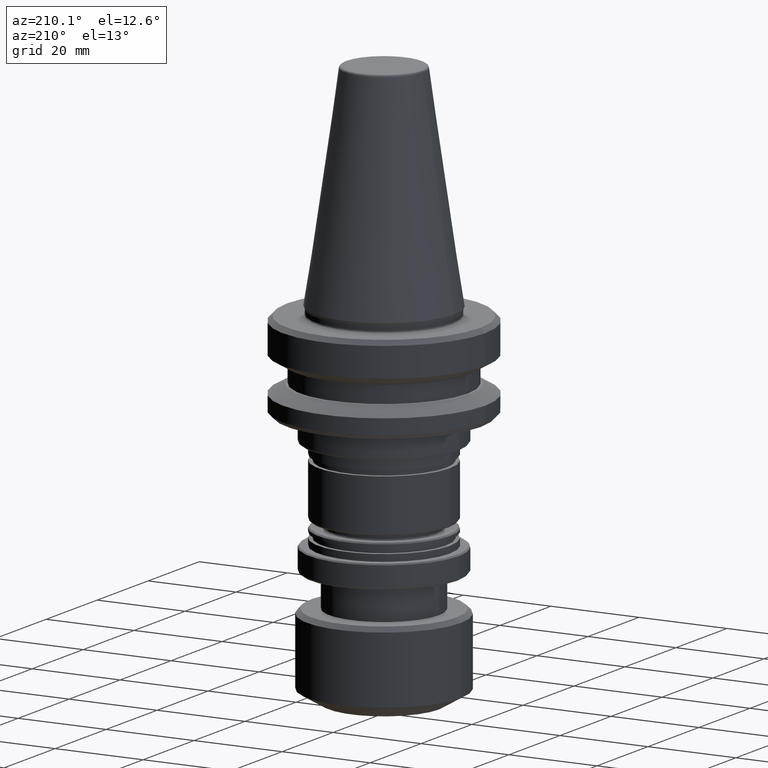
[diagram: clean part render]
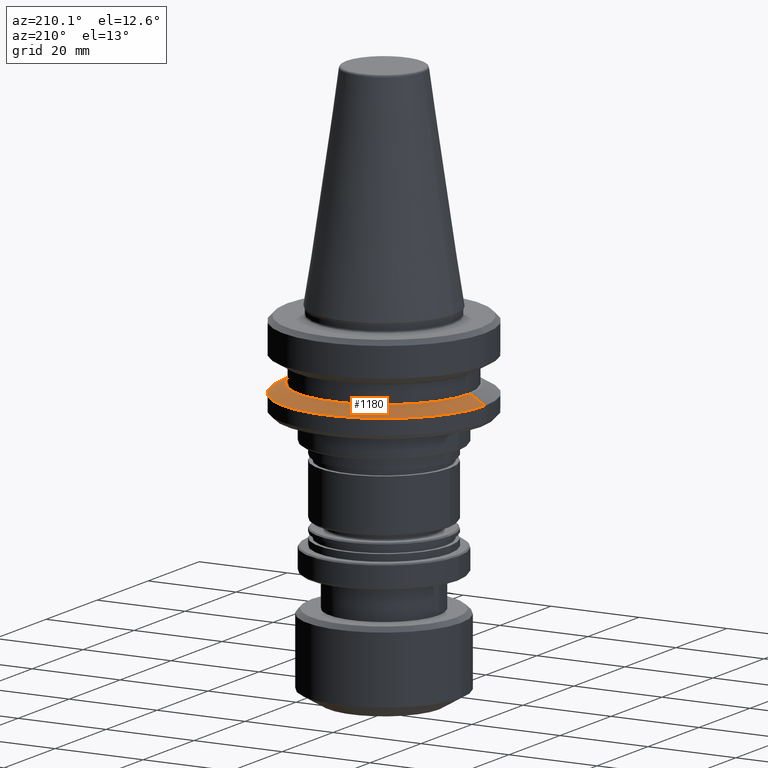
[diagram: same view with one face highlighted and labeled with its STEP entity id]
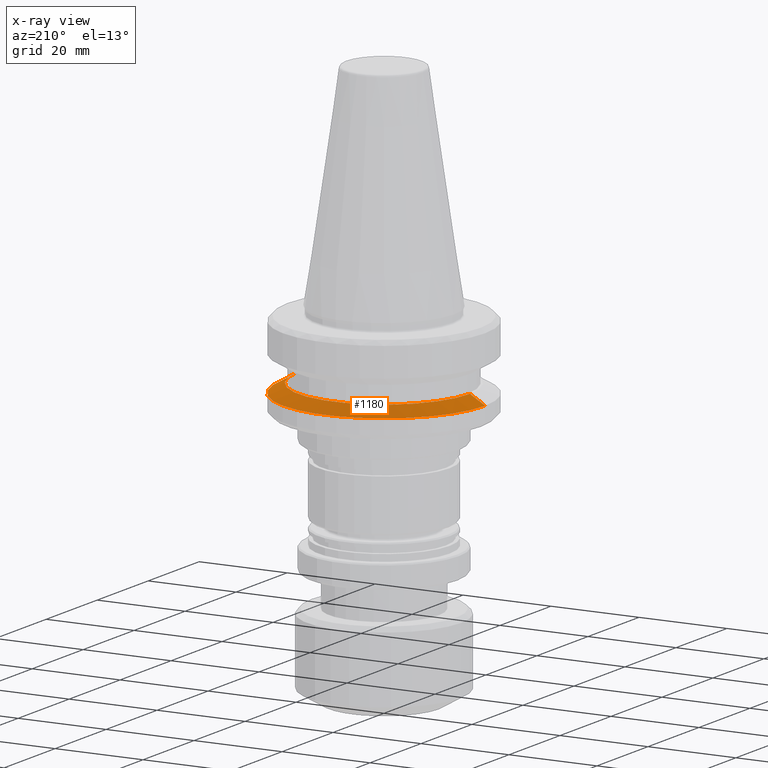
[diagram: x-ray of the same camera — body ghosted, the highlighted face saturated]
A machine part, auxiliary view. The second image highlights one B-rep face of the part: STEP entity #1180.
The next image is the same camera in x-ray: the body ghosted, the highlighted face saturated — about 0% of this face is hidden behind the body in this view.
In plain terms, the highlighted conical surface has half-angle 60 deg.
Its self-contained STEP definition (entity closure, byte-faithful):
#18 = CARTESIAN_POINT ( 'NONE',  ( 0.0000000000000000000, 0.0000000000000000000, -15.60000000000028000 ) ) ;
#129 = EDGE_CURVE ( 'NONE', #463, #1427, #1600, .T. ) ;
#423 = CIRCLE ( 'NONE', #690, 19.53610161513719100 ) ;
#463 = VERTEX_POINT ( 'NONE', #1821 ) ;
#514 = ORIENTED_EDGE ( 'NONE', *, *, #921, .F. ) ;
#557 = CARTESIAN_POINT ( 'NONE',  ( -22.99999999999968700, 0.0000000000000000000, -17.59988266494616500 ) ) ;
#598 = CONICAL_SURFACE ( 'NONE', #1762, 22.99999999999968700, 1.047197551196595000 ) ;
#690 = AXIS2_PLACEMENT_3D ( 'NONE', #18, #1477, #1317 ) ;
#796 = DIRECTION ( 'NONE',  ( -1.000000000000000000, 0.0000000000000000000, 0.0000000000000000000 ) ) ;
#797 = LINE ( 'NONE', #557, #2042 ) ;
#898 = DIRECTION ( 'NONE',  ( 1.000000000000000000, 0.0000000000000000000, 0.0000000000000000000 ) ) ;
#921 = EDGE_CURVE ( 'NONE', #2034, #2250, #797, .T. ) ;
#1030 = CARTESIAN_POINT ( 'NONE',  ( -19.53610161513719100, 0.0000000000000000000, -15.60000000000028000 ) ) ;
#1036 = CARTESIAN_POINT ( 'NONE',  ( 0.0000000000000000000, 0.0000000000000000000, -17.59988266494616500 ) ) ;
#1065 = DIRECTION ( 'NONE',  ( -0.0000000000000000000, -0.0000000000000000000, 1.000000000000000000 ) ) ;
#1096 = EDGE_CURVE ( 'NONE', #463, #2034, #423, .T. ) ;
#1130 = FACE_OUTER_BOUND ( 'NONE', #1527, .T. ) ;
#1132 = VECTOR ( 'NONE', #1985, 1000.000000000000000 ) ;
#1174 = ORIENTED_EDGE ( 'NONE', *, *, #129, .T. ) ;
#1180 = ADVANCED_FACE ( 'NONE', ( #1130 ), #598, .T. ) ;
#1317 = DIRECTION ( 'NONE',  ( 1.000000000000000000, 0.0000000000000000000, 0.0000000000000000000 ) ) ;
#1376 = DIRECTION ( 'NONE',  ( 0.0000000000000000000, 0.0000000000000000000, -1.000000000000000000 ) ) ;
#1427 = VERTEX_POINT ( 'NONE', #2167 ) ;
#1450 = ORIENTED_EDGE ( 'NONE', *, *, #1096, .F. ) ;
#1477 = DIRECTION ( 'NONE',  ( -0.0000000000000000000, -0.0000000000000000000, 1.000000000000000000 ) ) ;
#1481 = AXIS2_PLACEMENT_3D ( 'NONE', #1036, #1065, #898 ) ;
#1527 = EDGE_LOOP ( 'NONE', ( #1450, #1174, #1990, #514 ) ) ;
#1585 = CIRCLE ( 'NONE', #1481, 22.99999999999968700 ) ;
#1600 = LINE ( 'NONE', #1618, #1132 ) ;
#1618 = CARTESIAN_POINT ( 'NONE',  ( 22.99999999999968700, 2.816687638038874100E-015, -17.59988266494616500 ) ) ;
#1762 = AXIS2_PLACEMENT_3D ( 'NONE', #2196, #1376, #796 ) ;
#1821 = CARTESIAN_POINT ( 'NONE',  ( 19.53610161513719100, 2.604585034559196800E-015, -15.60000000000028000 ) ) ;
#1985 = DIRECTION ( 'NONE',  ( 0.8660254037844372600, 1.060575238724905200E-016, -0.5000000000000024400 ) ) ;
#1990 = ORIENTED_EDGE ( 'NONE', *, *, #2012, .T. ) ;
#2012 = EDGE_CURVE ( 'NONE', #1427, #2250, #1585, .T. ) ;
#2034 = VERTEX_POINT ( 'NONE', #1030 ) ;
#2042 = VECTOR ( 'NONE', #2244, 1000.000000000000000 ) ;
#2147 = CARTESIAN_POINT ( 'NONE',  ( -22.99999999999968700, 2.816687638038874500E-015, -17.59988266494616500 ) ) ;
#2167 = CARTESIAN_POINT ( 'NONE',  ( 22.99999999999968700, 0.0000000000000000000, -17.59988266494616500 ) ) ;
#2196 = CARTESIAN_POINT ( 'NONE',  ( 0.0000000000000000000, 0.0000000000000000000, -17.59988266494616500 ) ) ;
#2244 = DIRECTION ( 'NONE',  ( -0.8660254037844372600, 0.0000000000000000000, -0.5000000000000024400 ) ) ;
#2250 = VERTEX_POINT ( 'NONE', #2147 ) ;